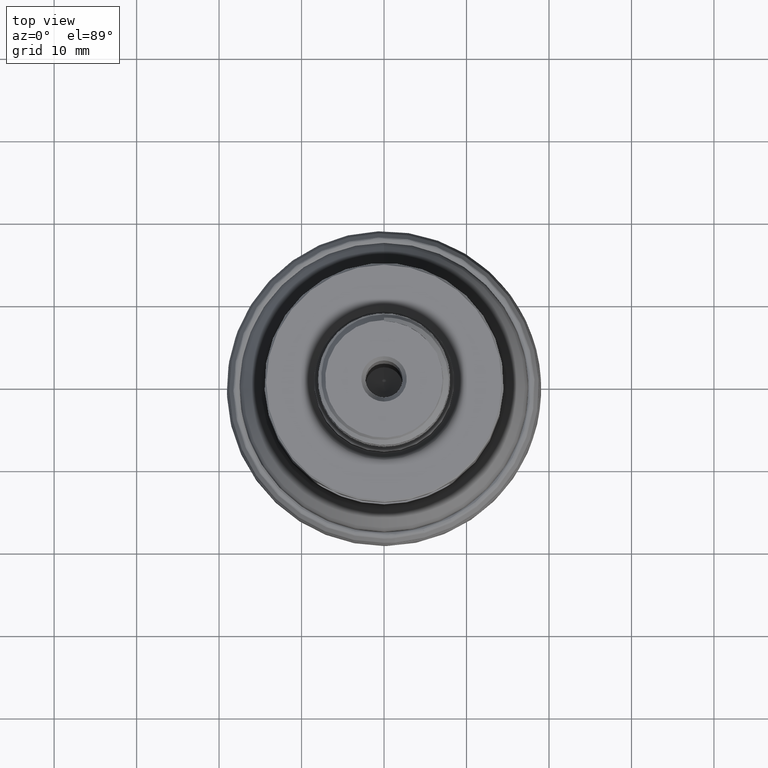
[diagram: clean part render]
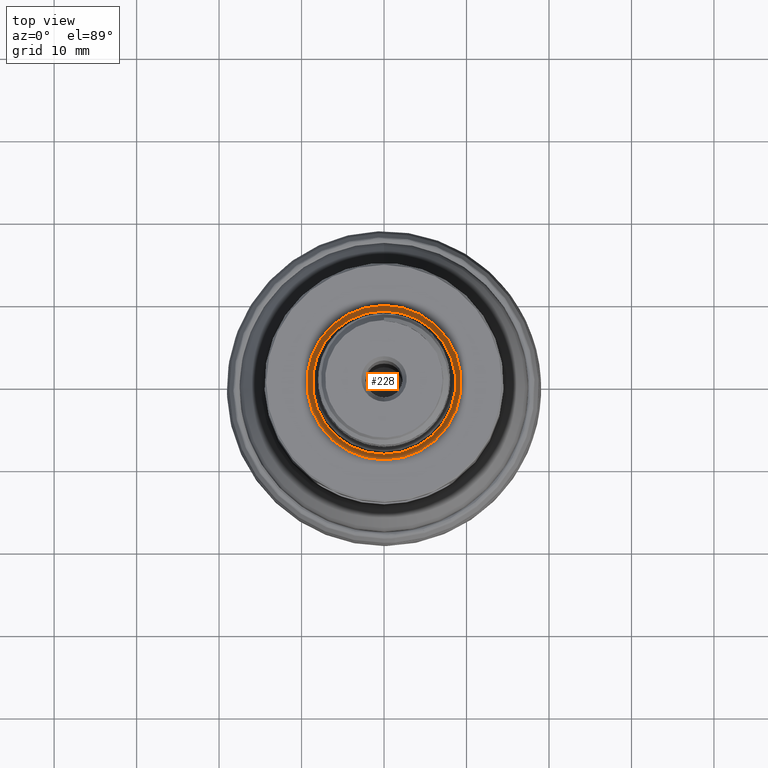
[diagram: same view with one face highlighted and labeled with its STEP entity id]
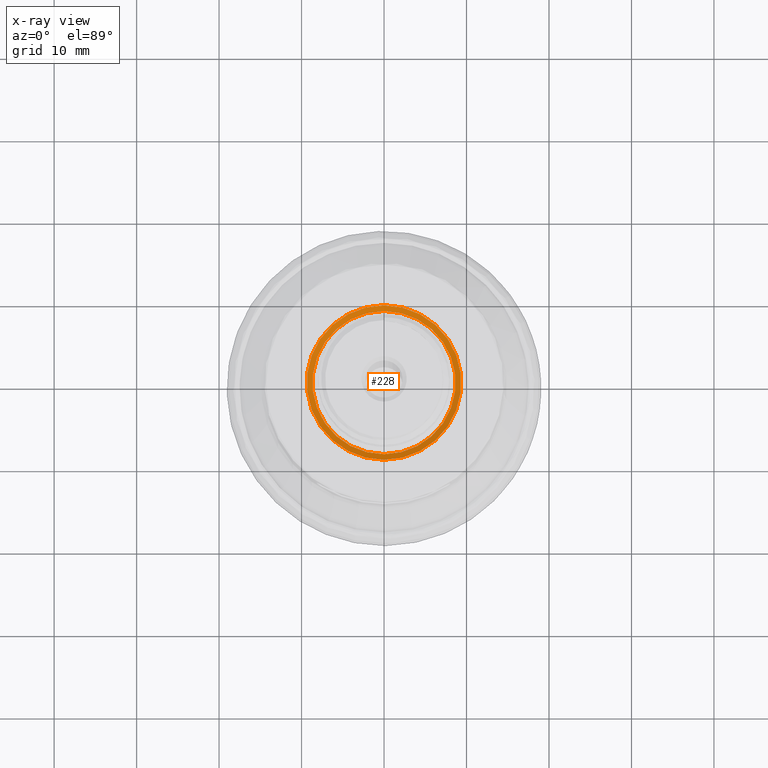
[diagram: x-ray of the same camera — body ghosted, the highlighted face saturated]
A machine part, top view. The second image highlights one B-rep face of the part: STEP entity #228.
The next image is the same camera in x-ray: the body ghosted, the highlighted face saturated — about 0% of this face is hidden behind the body in this view.
In plain terms, the highlighted conical surface has half-angle 62.5 deg.
Its self-contained STEP definition (entity closure, byte-faithful):
#188=CONICAL_SURFACE('',#1073,9.36627222808008,62.4999999999998);
#228=ADVANCED_FACE('',(#368,#369),#188,.F.);
#368=FACE_BOUND('',#472,.T.);
#369=FACE_BOUND('',#473,.T.);
#472=EDGE_LOOP('',(#615));
#473=EDGE_LOOP('',(#616));
#615=ORIENTED_EDGE('',*,*,#861,.F.);
#616=ORIENTED_EDGE('',*,*,#862,.T.);
#779=VERTEX_POINT('',#2131);
#780=VERTEX_POINT('',#2134);
#861=EDGE_CURVE('',#779,#779,#934,.T.);
#862=EDGE_CURVE('',#780,#780,#935,.T.);
#934=CIRCLE('',#1070,8.68469944529401);
#935=CIRCLE('',#1072,9.36627222808008);
#1070=AXIS2_PLACEMENT_3D('',#2130,#1230,#1231);
#1072=AXIS2_PLACEMENT_3D('',#2133,#1234,#1235);
#1073=AXIS2_PLACEMENT_3D('',#2135,#1236,#1237);
#1230=DIRECTION('',(1.17145536458252E-15,1.17145536458252E-15,1.));
#1231=DIRECTION('',(0.,1.,-7.98979164174439E-16));
#1234=DIRECTION('',(1.17145536458252E-15,1.17145536458252E-15,1.));
#1235=DIRECTION('',(0.,1.,-1.48167675141972E-15));
#1236=DIRECTION('',(1.17145536458252E-15,1.17145536458252E-15,1.));
#1237=DIRECTION('',(9.57802616034872E-33,1.,-1.09636304077007E-15));
#2130=CARTESIAN_POINT('',(5.16555535161054E-14,5.16555535161054E-14,44.0951956667287));
#2131=CARTESIAN_POINT('',(5.16555535161054E-14,8.68469944529407,44.0951956667287));
#2133=CARTESIAN_POINT('',(5.20711909556932E-14,5.20711909556932E-14,44.45));
#2134=CARTESIAN_POINT('',(5.20711909556932E-14,9.36627222808013,44.45));
#2135=CARTESIAN_POINT('',(5.20711909556932E-14,5.20711909556932E-14,44.45));